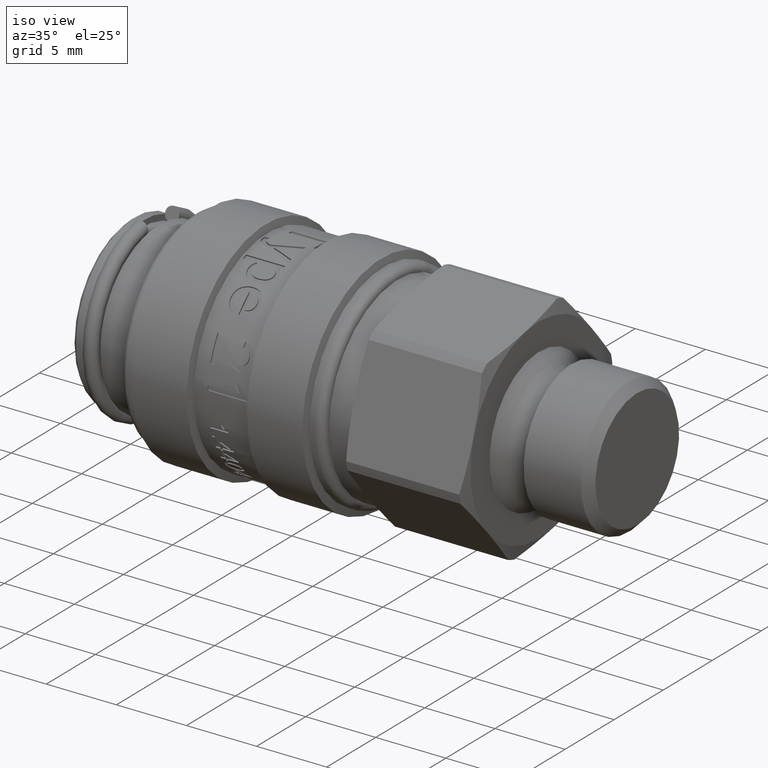
[diagram: clean part render]
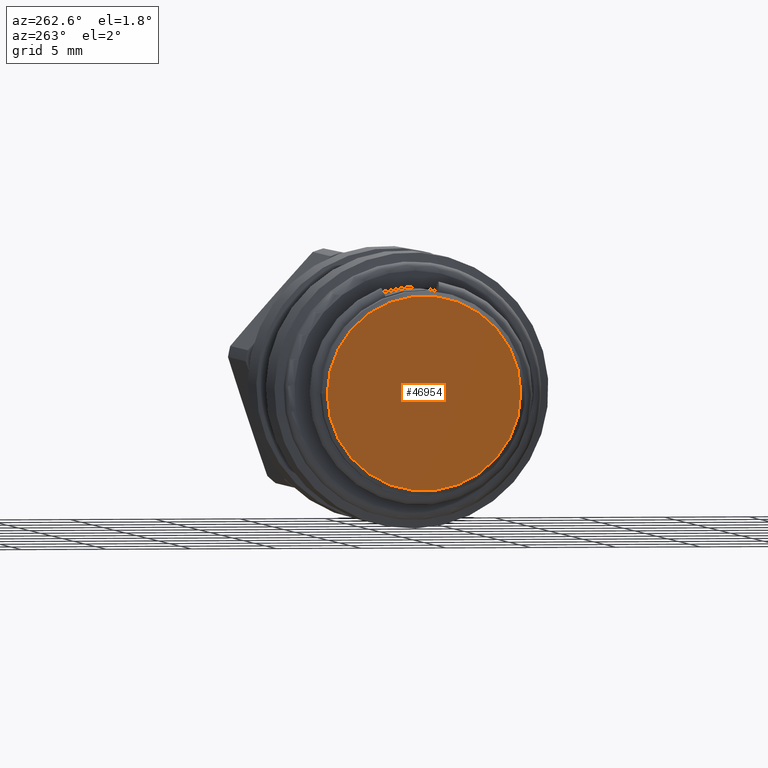
[diagram: tour spotlight — one face highlighted and labeled with its STEP entity id]
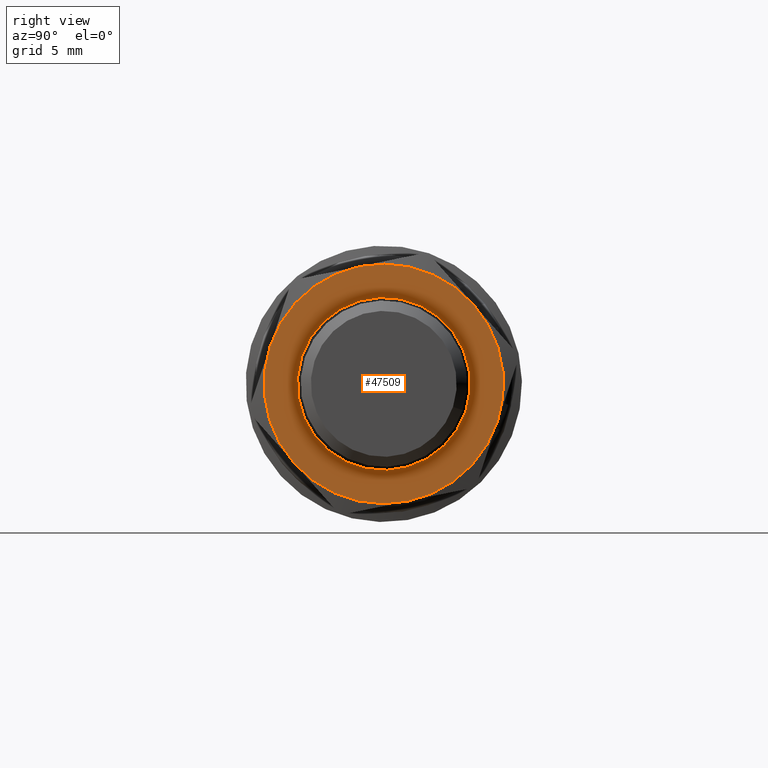
[diagram: tour spotlight — one face highlighted and labeled with its STEP entity id]
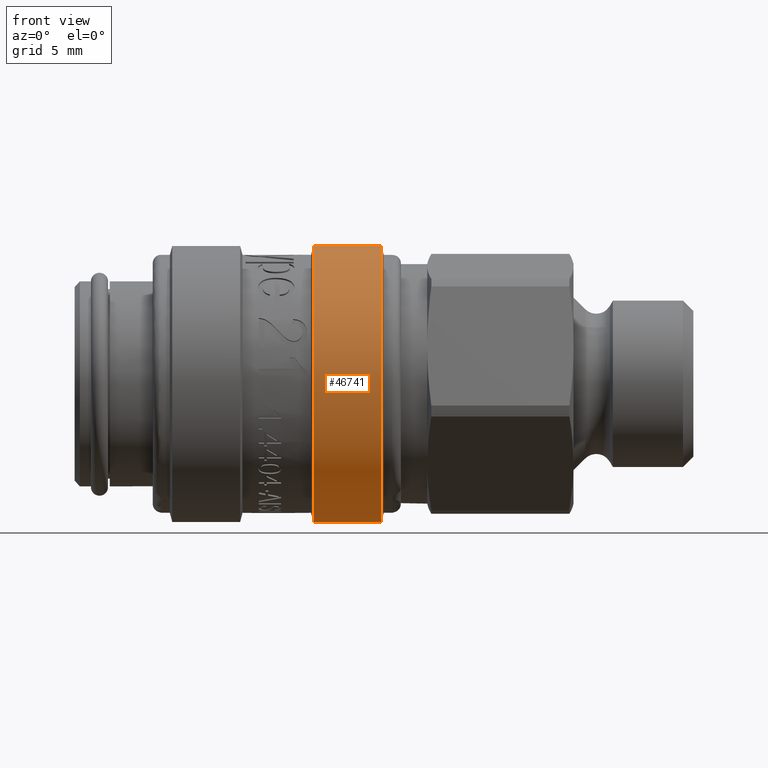
[diagram: tour spotlight — one face highlighted and labeled with its STEP entity id]
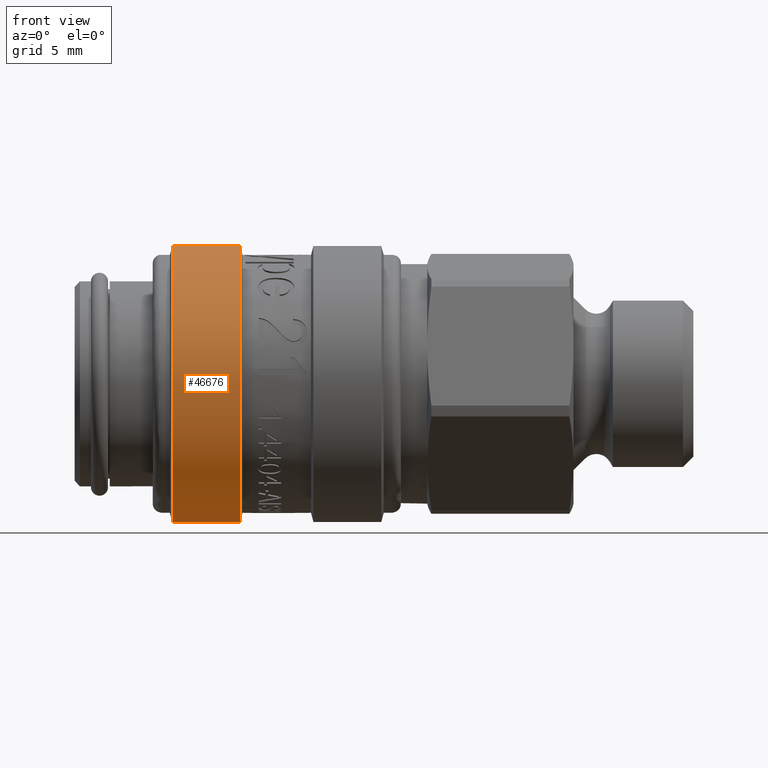
[diagram: tour spotlight — one face highlighted and labeled with its STEP entity id]
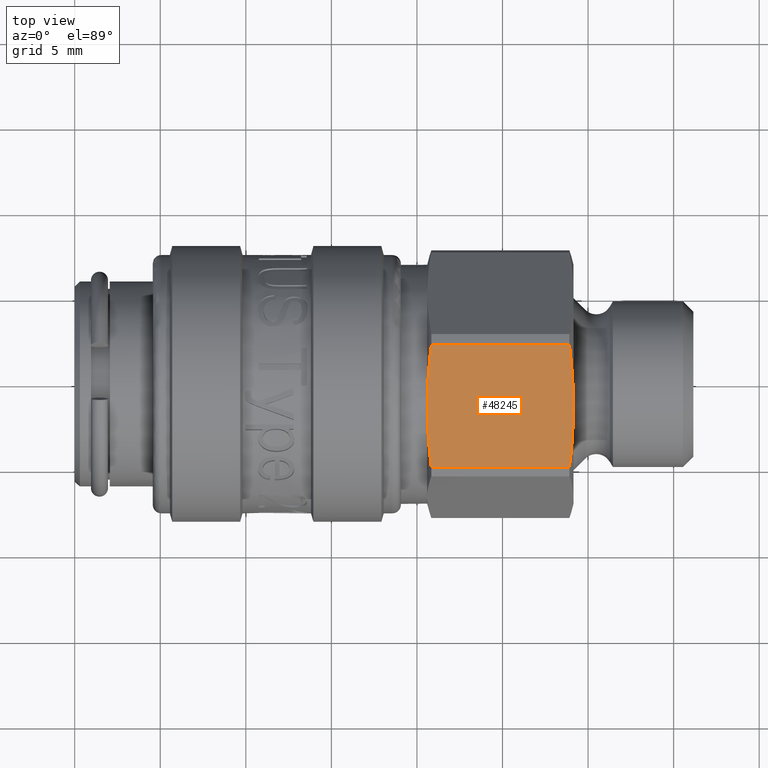
[diagram: tour spotlight — one face highlighted and labeled with its STEP entity id]
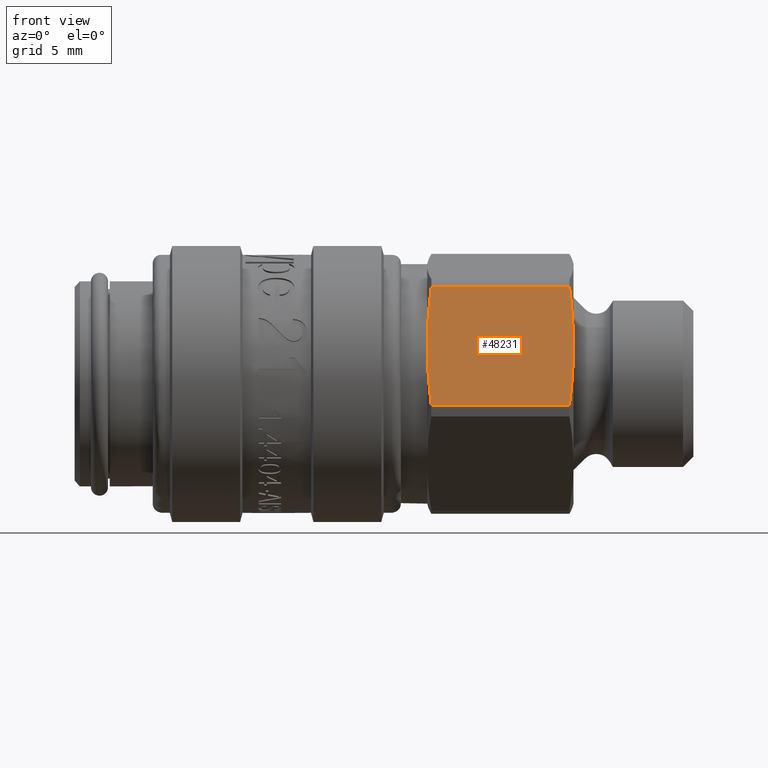
[diagram: tour spotlight — one face highlighted and labeled with its STEP entity id]
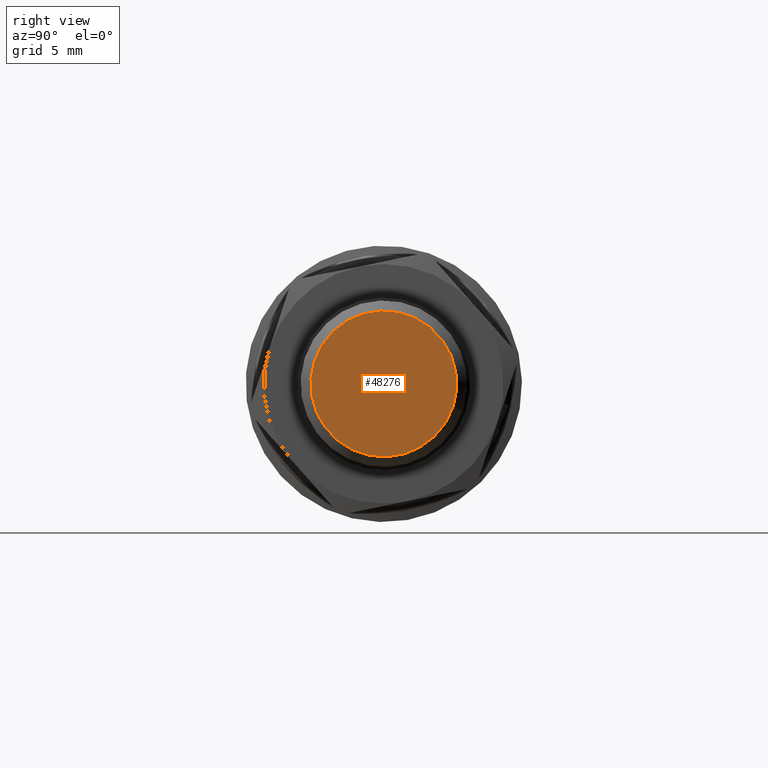
[diagram: tour spotlight — one face highlighted and labeled with its STEP entity id]
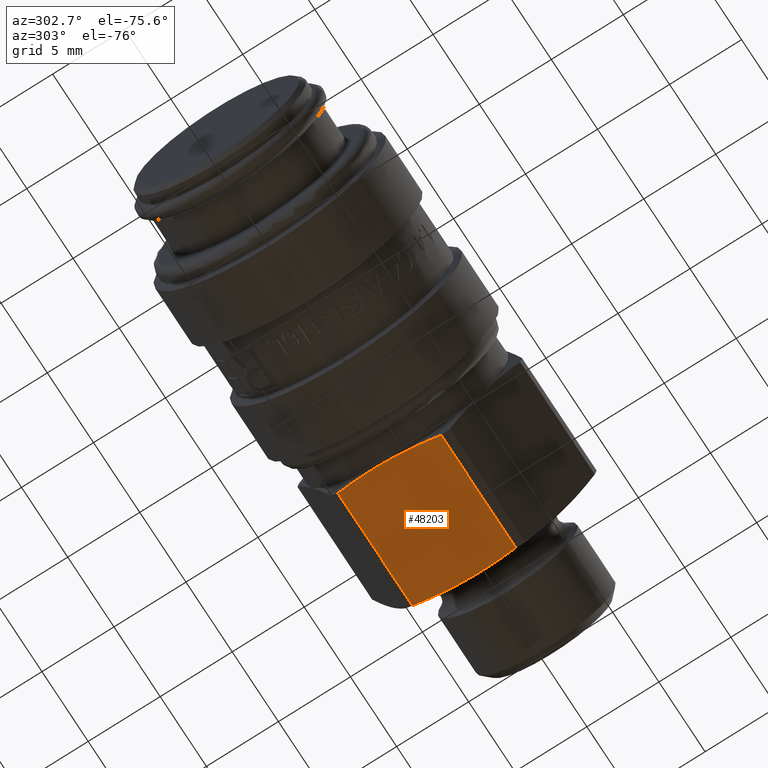
[diagram: tour spotlight — one face highlighted and labeled with its STEP entity id]
A machine part: a face-by-face anatomy tour. The part has 401 B-rep faces; the first image is the clean iso view, then the 8 largest visible faces are spotlighted one at a time (largest first), each with its STEP entity span.

Face 1 — auxiliary view, entity #46954. In plain terms, the highlighted planar face has unit normal (-1, 0, 0).
Definition (entity closure, byte-faithful):
#46934=CARTESIAN_POINT('',(2.775558E-016,5.700000000000001,0.0));
#46935=VERTEX_POINT('',#46934);
#46936=CARTESIAN_POINT('',(0.0,0.0,0.0));
#46937=DIRECTION('',(1.0,0.0,0.0));
#46938=DIRECTION('',(0.0,1.0,0.0));
#46939=AXIS2_PLACEMENT_3D('',#46936,#46937,#46938);
#46940=CIRCLE('',#46939,5.700000000000001);
#46941=EDGE_CURVE('',#46935,#46935,#46940,.T.);
#46946=CARTESIAN_POINT('',(2.605129E-016,5.350000000000001,0.0));
#46947=DIRECTION('',(-1.0,0.0,0.0));
#46948=DIRECTION('',(0.0,0.0,1.0));
#46949=AXIS2_PLACEMENT_3D('',#46946,#46947,#46948);
#46950=PLANE('',#46949);
#46951=ORIENTED_EDGE('',*,*,#46941,.F.);
#46952=EDGE_LOOP('',(#46951));
#46953=FACE_OUTER_BOUND('',#46952,.T.);
#46954=ADVANCED_FACE('',(#46953),#46950,.T.);

Face 2 — right view, entity #47509. In plain terms, the highlighted planar face has unit normal (1, 0, 0).
Definition (entity closure, byte-faithful):
#47406=CARTESIAN_POINT('',(29.149999999999995,5.235991409080829,4.645900769929528));
#47407=VERTEX_POINT('',#47406);
#47422=CARTESIAN_POINT('',(29.149999999999995,-1.405472385680237,6.857451959225839));
#47423=VERTEX_POINT('',#47422);
#47437=CARTESIAN_POINT('',(29.149999999999995,0.0,0.0));
#47438=DIRECTION('',(-1.0,0.0,0.0));
#47439=DIRECTION('',(0.0,0.948780542108724,-0.315935884185188));
#47440=AXIS2_PLACEMENT_3D('',#47437,#47438,#47439);
#47441=CIRCLE('',#47440,7.000000000000001);
#47442=EDGE_CURVE('',#47423,#47407,#47441,.T.);
#47447=CARTESIAN_POINT('',(29.149999999999995,5.71640276620506,-1.90351370221576));
#47448=DIRECTION('',(1.0,0.0,0.0));
#47449=DIRECTION('',(0.0,-0.315935884185188,-0.948780542108724));
#47450=AXIS2_PLACEMENT_3D('',#47447,#47448,#47449);
#47451=PLANE('',#47450);
#47452=CARTESIAN_POINT('',(29.149999999999995,6.641463794761066,-2.211551189296318));
#47453=VERTEX_POINT('',#47452);
#47454=CARTESIAN_POINT('',(29.149999999999995,1.405472385680234,-6.857451959225841));
#47455=VERTEX_POINT('',#47454);
#47456=CARTESIAN_POINT('',(29.149999999999995,0.0,0.0));
#47457=DIRECTION('',(-1.0,0.0,0.0));
#47458=DIRECTION('',(0.0,0.948780542108724,-0.315935884185188));
#47459=AXIS2_PLACEMENT_3D('',#47456,#47457,#47458);
#47460=CIRCLE('',#47459,7.000000000000001);
#47461=EDGE_CURVE('',#47453,#47455,#47460,.T.);
#47462=ORIENTED_EDGE('',*,*,#47461,.F.);
#47463=CARTESIAN_POINT('',(29.149999999999995,0.0,0.0));
#47464=DIRECTION('',(-1.0,0.0,0.0));
#47465=DIRECTION('',(0.0,0.948780542108724,-0.315935884185188));
#47466=AXIS2_PLACEMENT_3D('',#47463,#47464,#47465);
#47467=CIRCLE('',#47466,7.000000000000001);
#47468=EDGE_CURVE('',#47407,#47453,#47467,.T.);
#47469=ORIENTED_EDGE('',*,*,#47468,.F.);
#47470=ORIENTED_EDGE('',*,*,#47442,.F.);
#47471=CARTESIAN_POINT('',(29.149999999999995,-6.641463794761067,2.211551189296317));
#47472=VERTEX_POINT('',#47471);
#47473=CARTESIAN_POINT('',(29.149999999999995,0.0,0.0));
#47474=DIRECTION('',(-1.0,0.0,0.0));
#47475=DIRECTION('',(0.0,0.948780542108724,-0.315935884185188));
#47476=AXIS2_PLACEMENT_3D('',#47473,#47474,#47475);
#47477=CIRCLE('',#47476,7.000000000000001);
#47478=EDGE_CURVE('',#47472,#47423,#47477,.T.);
#47479=ORIENTED_EDGE('',*,*,#47478,.F.);
#47480=CARTESIAN_POINT('',(29.149999999999995,-5.235991409080833,-4.645900769929525));
#47481=VERTEX_POINT('',#47480);
#47482=CARTESIAN_POINT('',(29.149999999999995,0.0,0.0));
#47483=DIRECTION('',(-1.0,0.0,0.0));
#47484=DIRECTION('',(0.0,0.948780542108724,-0.315935884185188));
#47485=AXIS2_PLACEMENT_3D('',#47482,#47483,#47484);
#47486=CIRCLE('',#47485,7.000000000000001);
#47487=EDGE_CURVE('',#47481,#47472,#47486,.T.);
#47488=ORIENTED_EDGE('',*,*,#47487,.F.);
#47489=CARTESIAN_POINT('',(29.149999999999995,0.0,0.0));
#47490=DIRECTION('',(-1.0,0.0,0.0));
#47491=DIRECTION('',(0.0,0.948780542108724,-0.315935884185188));
#47492=AXIS2_PLACEMENT_3D('',#47489,#47490,#47491);
#47493=CIRCLE('',#47492,7.000000000000001);
#47494=EDGE_CURVE('',#47455,#47481,#47493,.T.);
#47495=ORIENTED_EDGE('',*,*,#47494,.F.);
#47496=EDGE_LOOP('',(#47462,#47469,#47470,#47479,#47488,#47495));
#47497=FACE_OUTER_BOUND('',#47496,.T.);
#47498=CARTESIAN_POINT('',(29.149999999999995,4.791341737649054,-1.595476215135201));
#47499=VERTEX_POINT('',#47498);
#47500=CARTESIAN_POINT('',(29.149999999999995,0.0,0.0));
#47501=DIRECTION('',(-1.0,0.0,0.0));
#47502=DIRECTION('',(0.0,0.948780542108724,-0.315935884185188));
#47503=AXIS2_PLACEMENT_3D('',#47500,#47501,#47502);
#47504=CIRCLE('',#47503,5.05);
#47505=EDGE_CURVE('',#47499,#47499,#47504,.T.);
#47506=ORIENTED_EDGE('',*,*,#47505,.T.);
#47507=EDGE_LOOP('',(#47506));
#47508=FACE_BOUND('',#47507,.T.);
#47509=ADVANCED_FACE('',(#47497,#47508),#47451,.T.);

Face 3 — front view, entity #46741. In plain terms, the highlighted cylindrical surface (bore or boss wall) has radius 8.075 mm, axis along (1, 0, 0).
Definition (entity closure, byte-faithful):
#46707=CARTESIAN_POINT('',(13.95067332602634,6.722767614117088,-4.473256152578166));
#46708=VERTEX_POINT('',#46707);
#46709=CARTESIAN_POINT('',(13.95067332602634,0.0,0.0));
#46710=DIRECTION('',(1.0,0.0,0.0));
#46711=DIRECTION('',(0.0,0.832540881005212,-0.553963610226398));
#46712=AXIS2_PLACEMENT_3D('',#46709,#46710,#46711);
#46713=CIRCLE('',#46712,8.074999999999998);
#46714=EDGE_CURVE('',#46708,#46708,#46713,.T.);
#46722=CARTESIAN_POINT('',(15.935000000000002,0.0,0.0));
#46723=DIRECTION('',(1.0,0.0,0.0));
#46724=DIRECTION('',(0.0,0.832540881005212,-0.553963610226398));
#46725=AXIS2_PLACEMENT_3D('',#46722,#46723,#46724);
#46726=CYLINDRICAL_SURFACE('',#46725,8.074999999999999);
#46727=CARTESIAN_POINT('',(17.919326673973664,6.722767614117089,-4.473256152578167));
#46728=VERTEX_POINT('',#46727);
#46729=CARTESIAN_POINT('',(17.919326673973664,0.0,0.0));
#46730=DIRECTION('',(1.0,0.0,0.0));
#46731=DIRECTION('',(0.0,0.832540881005212,-0.553963610226399));
#46732=AXIS2_PLACEMENT_3D('',#46729,#46730,#46731);
#46733=CIRCLE('',#46732,8.074999999999999);
#46734=EDGE_CURVE('',#46728,#46728,#46733,.T.);
#46735=ORIENTED_EDGE('',*,*,#46734,.F.);
#46736=EDGE_LOOP('',(#46735));
#46737=FACE_OUTER_BOUND('',#46736,.T.);
#46738=ORIENTED_EDGE('',*,*,#46714,.T.);
#46739=EDGE_LOOP('',(#46738));
#46740=FACE_BOUND('',#46739,.T.);
#46741=ADVANCED_FACE('',(#46737,#46740),#46726,.T.);

Face 4 — front view, entity #46676. In plain terms, the highlighted cylindrical surface (bore or boss wall) has radius 8.075 mm, axis along (1, 0, 0).
Definition (entity closure, byte-faithful):
#46642=CARTESIAN_POINT('',(5.70067332602634,6.722767614117089,-4.473256152578167));
#46643=VERTEX_POINT('',#46642);
#46644=CARTESIAN_POINT('',(5.70067332602634,0.0,0.0));
#46645=DIRECTION('',(1.0,0.0,0.0));
#46646=DIRECTION('',(0.0,0.832540881005212,-0.553963610226399));
#46647=AXIS2_PLACEMENT_3D('',#46644,#46645,#46646);
#46648=CIRCLE('',#46647,8.074999999999999);
#46649=EDGE_CURVE('',#46643,#46643,#46648,.T.);
#46657=CARTESIAN_POINT('',(7.685,0.0,0.0));
#46658=DIRECTION('',(1.0,0.0,0.0));
#46659=DIRECTION('',(0.0,0.832540881005212,-0.553963610226398));
#46660=AXIS2_PLACEMENT_3D('',#46657,#46658,#46659);
#46661=CYLINDRICAL_SURFACE('',#46660,8.074999999999999);
#46662=CARTESIAN_POINT('',(9.669326673973661,6.722767614117088,-4.473256152578166));
#46663=VERTEX_POINT('',#46662);
#46664=CARTESIAN_POINT('',(9.669326673973661,0.0,0.0));
#46665=DIRECTION('',(1.0,0.0,0.0));
#46666=DIRECTION('',(0.0,0.832540881005212,-0.553963610226398));
#46667=AXIS2_PLACEMENT_3D('',#46664,#46665,#46666);
#46668=CIRCLE('',#46667,8.074999999999998);
#46669=EDGE_CURVE('',#46663,#46663,#46668,.T.);
#46670=ORIENTED_EDGE('',*,*,#46669,.F.);
#46671=EDGE_LOOP('',(#46670));
#46672=FACE_OUTER_BOUND('',#46671,.T.);
#46673=ORIENTED_EDGE('',*,*,#46649,.T.);
#46674=EDGE_LOOP('',(#46673));
#46675=FACE_BOUND('',#46674,.T.);
#46676=ADVANCED_FACE('',(#46672,#46675),#46661,.T.);

Face 5 — top view, entity #48245. In plain terms, the highlighted planar face has unit normal (0, 0.2008, -0.9796).
Definition (entity closure, byte-faithful):
#47331=CARTESIAN_POINT('',(20.599999999999994,-1.405472385680237,6.857451959225839));
#47332=VERTEX_POINT('',#47331);
#47374=CARTESIAN_POINT('',(20.841154273188014,2.181921988141717,7.592708109605145));
#47375=VERTEX_POINT('',#47374);
#47383=CARTESIAN_POINT('',(28.908845726811986,2.181921988141717,7.592708109605145));
#47384=VERTEX_POINT('',#47383);
#47385=CARTESIAN_POINT('',(20.841154273188017,2.181921988141717,7.592708109605145));
#47386=DIRECTION('',(1.0,0.0,0.0));
#47387=VECTOR('',#47386,8.067691453623972);
#47388=LINE('',#47385,#47387);
#47389=EDGE_CURVE('',#47375,#47384,#47388,.T.);
#47422=CARTESIAN_POINT('',(29.149999999999995,-1.405472385680237,6.857451959225839));
#47423=VERTEX_POINT('',#47422);
#47424=CARTESIAN_POINT('',(28.908845726811986,2.181921988141715,7.592708109605143));
#47425=CARTESIAN_POINT('',(29.149999999999995,0.279880675846851,7.202874311753029));
#47426=CARTESIAN_POINT('',(29.149999999999995,-1.405472385680237,6.857451959225839));
#47434=(BOUNDED_CURVE()B_SPLINE_CURVE(2,(#47424,#47425,#47426),.UNSPECIFIED.,.F.,.U.)B_SPLINE_CURVE_WITH_KNOTS((3,3),(0.0,0.367169590188575),.UNSPECIFIED.)CURVE()GEOMETRIC_REPRESENTATION_ITEM()RATIONAL_B_SPLINE_CURVE((1.0,1.031642241421756,1.0))REPRESENTATION_ITEM(''));
#47435=EDGE_CURVE('',#47384,#47423,#47434,.T.);
#47655=CARTESIAN_POINT('',(28.908845726811986,-4.992866759502191,6.122195808846538));
#47656=VERTEX_POINT('',#47655);
#47657=CARTESIAN_POINT('',(29.149999999999995,-1.405472385680237,6.857451959225839));
#47658=CARTESIAN_POINT('',(29.149999999999995,-3.090825447207325,6.512029606698652));
#47659=CARTESIAN_POINT('',(28.908845726811986,-4.99286675950219,6.122195808846538));
#47667=(BOUNDED_CURVE()B_SPLINE_CURVE(2,(#47657,#47658,#47659),.UNSPECIFIED.,.F.,.U.)B_SPLINE_CURVE_WITH_KNOTS((3,3),(0.367169590188575,0.73433918037715),.UNSPECIFIED.)CURVE()GEOMETRIC_REPRESENTATION_ITEM()RATIONAL_B_SPLINE_CURVE((1.0,1.031642241421755,1.0))REPRESENTATION_ITEM(''));
#47668=EDGE_CURVE('',#47423,#47656,#47667,.T.);
#47857=CARTESIAN_POINT('',(20.841154273188014,-4.992866759502191,6.122195808846538));
#47858=VERTEX_POINT('',#47857);
#47859=CARTESIAN_POINT('',(28.90884572681199,-4.992866759502191,6.122195808846538));
#47860=DIRECTION('',(-1.0,0.0,0.0));
#47861=VECTOR('',#47860,8.067691453623972);
#47862=LINE('',#47859,#47861);
#47863=EDGE_CURVE('',#47656,#47858,#47862,.T.);
#48017=CARTESIAN_POINT('',(20.599999999999994,-1.405472385680238,6.857451959225841));
#48018=CARTESIAN_POINT('',(20.600000000000001,0.279880675846858,7.20287431175303));
#48019=CARTESIAN_POINT('',(20.841154273188014,2.181921988141736,7.592708109605147));
#48027=(BOUNDED_CURVE()B_SPLINE_CURVE(2,(#48017,#48018,#48019),.UNSPECIFIED.,.F.,.U.)B_SPLINE_CURVE_WITH_KNOTS((3,3),(0.367169590188577,0.734339180377154),.UNSPECIFIED.)CURVE()GEOMETRIC_REPRESENTATION_ITEM()RATIONAL_B_SPLINE_CURVE((1.0,1.031642241421724,1.0))REPRESENTATION_ITEM(''));
#48028=EDGE_CURVE('',#47332,#47375,#48027,.T.);
#48063=CARTESIAN_POINT('',(20.841154273188014,-4.992866759502209,6.122195808846533));
#48064=CARTESIAN_POINT('',(20.599999999999994,-3.090825447207333,6.512029606698651));
#48065=CARTESIAN_POINT('',(20.599999999999994,-1.405472385680238,6.857451959225841));
#48073=(BOUNDED_CURVE()B_SPLINE_CURVE(2,(#48063,#48064,#48065),.UNSPECIFIED.,.F.,.U.)B_SPLINE_CURVE_WITH_KNOTS((3,3),(0.0,0.367169590188577),.UNSPECIFIED.)CURVE()GEOMETRIC_REPRESENTATION_ITEM()RATIONAL_B_SPLINE_CURVE((1.0,1.031642241421728,1.0))REPRESENTATION_ITEM(''));
#48074=EDGE_CURVE('',#47858,#47332,#48073,.T.);
#48232=CARTESIAN_POINT('',(19.146334310459181,-1.405472385680237,6.857451959225839));
#48233=DIRECTION('',(0.0,0.200781769382891,-0.97963599417512));
#48234=DIRECTION('',(0.0,-0.97963599417512,-0.200781769382891));
#48235=AXIS2_PLACEMENT_3D('',#48232,#48233,#48234);
#48236=PLANE('',#48235);
#48237=ORIENTED_EDGE('',*,*,#48028,.F.);
#48238=ORIENTED_EDGE('',*,*,#48074,.F.);
#48239=ORIENTED_EDGE('',*,*,#47863,.F.);
#48240=ORIENTED_EDGE('',*,*,#47668,.F.);
#48241=ORIENTED_EDGE('',*,*,#47435,.F.);
#48242=ORIENTED_EDGE('',*,*,#47389,.F.);
#48243=EDGE_LOOP('',(#48237,#48238,#48239,#48240,#48241,#48242));
#48244=FACE_OUTER_BOUND('',#48243,.T.);
#48245=ADVANCED_FACE('',(#48244),#48236,.F.);

Face 6 — front view, entity #48231. In plain terms, the highlighted planar face has unit normal (0, 0.9488, -0.3159).
Definition (entity closure, byte-faithful):
#47322=CARTESIAN_POINT('',(20.599999999999994,-6.641463794761067,2.211551189296317));
#47323=VERTEX_POINT('',#47322);
#47471=CARTESIAN_POINT('',(29.149999999999995,-6.641463794761067,2.211551189296317));
#47472=VERTEX_POINT('',#47471);
#47670=CARTESIAN_POINT('',(28.908845726811986,-5.484517112367318,5.685953925609147));
#47671=VERTEX_POINT('',#47670);
#47679=CARTESIAN_POINT('',(28.908845726811986,-5.484517112367319,5.685953925609143));
#47680=CARTESIAN_POINT('',(29.149999999999995,-6.097931796321054,3.843820931188237));
#47681=CARTESIAN_POINT('',(29.149999999999995,-6.641463794761067,2.211551189296317));
#47689=(BOUNDED_CURVE()B_SPLINE_CURVE(2,(#47679,#47680,#47681),.UNSPECIFIED.,.F.,.U.)B_SPLINE_CURVE_WITH_KNOTS((3,3),(0.0,0.367169590188574),.UNSPECIFIED.)CURVE()GEOMETRIC_REPRESENTATION_ITEM()RATIONAL_B_SPLINE_CURVE((1.0,1.031642241421788,1.0))REPRESENTATION_ITEM(''));
#47690=EDGE_CURVE('',#47671,#47472,#47689,.T.);
#47701=CARTESIAN_POINT('',(28.908845726811986,-7.798410477154816,-1.262851547016513));
#47702=VERTEX_POINT('',#47701);
#47703=CARTESIAN_POINT('',(29.149999999999995,-6.641463794761067,2.211551189296317));
#47704=CARTESIAN_POINT('',(29.149999999999995,-7.184995793201079,0.579281447404397));
#47705=CARTESIAN_POINT('',(28.908845726811986,-7.798410477154816,-1.262851547016509));
#47713=(BOUNDED_CURVE()B_SPLINE_CURVE(2,(#47703,#47704,#47705),.UNSPECIFIED.,.F.,.U.)B_SPLINE_CURVE_WITH_KNOTS((3,3),(0.367169590188574,0.734339180377149),.UNSPECIFIED.)CURVE()GEOMETRIC_REPRESENTATION_ITEM()RATIONAL_B_SPLINE_CURVE((1.0,1.031642241421768,1.0))REPRESENTATION_ITEM(''));
#47714=EDGE_CURVE('',#47472,#47702,#47713,.T.);
#47865=CARTESIAN_POINT('',(20.841154273188014,-5.484517112367318,5.685953925609147));
#47866=VERTEX_POINT('',#47865);
#47874=CARTESIAN_POINT('',(20.841154273188017,-5.484517112367318,5.685953925609147));
#47875=DIRECTION('',(1.0,0.0,0.0));
#47876=VECTOR('',#47875,8.067691453623972);
#47877=LINE('',#47874,#47876);
#47878=EDGE_CURVE('',#47866,#47671,#47877,.T.);
#47889=CARTESIAN_POINT('',(20.841154273188014,-7.798410477154816,-1.262851547016513));
#47890=VERTEX_POINT('',#47889);
#47891=CARTESIAN_POINT('',(28.90884572681199,-7.798410477154816,-1.262851547016513));
#47892=DIRECTION('',(-1.0,0.0,0.0));
#47893=VECTOR('',#47892,8.067691453623972);
#47894=LINE('',#47891,#47893);
#47895=EDGE_CURVE('',#47702,#47890,#47894,.T.);
#48077=CARTESIAN_POINT('',(20.599999999999994,-6.641463794761067,2.211551189296317));
#48078=CARTESIAN_POINT('',(20.600000000000001,-6.097931796321049,3.843820931188255));
#48079=CARTESIAN_POINT('',(20.841154273188014,-5.484517112367312,5.685953925609164));
#48087=(BOUNDED_CURVE()B_SPLINE_CURVE(2,(#48077,#48078,#48079),.UNSPECIFIED.,.F.,.U.)B_SPLINE_CURVE_WITH_KNOTS((3,3),(0.367169590188577,0.734339180377154),.UNSPECIFIED.)CURVE()GEOMETRIC_REPRESENTATION_ITEM()RATIONAL_B_SPLINE_CURVE((1.0,1.031642241421729,1.0))REPRESENTATION_ITEM(''));
#48088=EDGE_CURVE('',#47323,#47866,#48087,.T.);
#48099=CARTESIAN_POINT('',(20.841154273188014,-7.798410477154824,-1.262851547016531));
#48100=CARTESIAN_POINT('',(20.599999999999994,-7.184995793201086,0.579281447404379));
#48101=CARTESIAN_POINT('',(20.599999999999994,-6.641463794761067,2.211551189296317));
#48109=(BOUNDED_CURVE()B_SPLINE_CURVE(2,(#48099,#48100,#48101),.UNSPECIFIED.,.F.,.U.)B_SPLINE_CURVE_WITH_KNOTS((3,3),(0.0,0.367169590188577),.UNSPECIFIED.)CURVE()GEOMETRIC_REPRESENTATION_ITEM()RATIONAL_B_SPLINE_CURVE((1.0,1.031642241421718,1.0))REPRESENTATION_ITEM(''));
#48110=EDGE_CURVE('',#47890,#47323,#48109,.T.);
#48218=CARTESIAN_POINT('',(19.146334310459181,-6.641463794761067,2.211551189296317));
#48219=DIRECTION('',(0.0,0.948780542108724,-0.315935884185188));
#48220=DIRECTION('',(0.0,-0.315935884185188,-0.948780542108724));
#48221=AXIS2_PLACEMENT_3D('',#48218,#48219,#48220);
#48222=PLANE('',#48221);
#48223=ORIENTED_EDGE('',*,*,#48088,.F.);
#48224=ORIENTED_EDGE('',*,*,#48110,.F.);
#48225=ORIENTED_EDGE('',*,*,#47895,.F.);
#48226=ORIENTED_EDGE('',*,*,#47714,.F.);
#48227=ORIENTED_EDGE('',*,*,#47690,.F.);
#48228=ORIENTED_EDGE('',*,*,#47878,.F.);
#48229=EDGE_LOOP('',(#48223,#48224,#48225,#48226,#48227,#48228));
#48230=FACE_OUTER_BOUND('',#48229,.T.);
#48231=ADVANCED_FACE('',(#48230),#48222,.F.);

Face 7 — right view, entity #48276. In plain terms, the highlighted planar face has unit normal (1, 0, 0).
Definition (entity closure, byte-faithful):
#48260=CARTESIAN_POINT('',(36.149999999999999,3.49340995604432,-1.163275925569863));
#48261=DIRECTION('',(1.0,0.0,0.0));
#48262=DIRECTION('',(0.0,-0.315935884185188,-0.948780542108724));
#48263=AXIS2_PLACEMENT_3D('',#48260,#48261,#48262);
#48264=PLANE('',#48263);
#48265=CARTESIAN_POINT('',(36.149999999999999,4.045600231551597,-1.347150610165643));
#48266=VERTEX_POINT('',#48265);
#48267=CARTESIAN_POINT('',(36.149999999999999,0.0,0.0));
#48268=DIRECTION('',(-1.0,0.0,0.0));
#48269=DIRECTION('',(0.0,-0.948780542108723,0.315935884185188));
#48270=AXIS2_PLACEMENT_3D('',#48267,#48268,#48269);
#48271=CIRCLE('',#48270,4.263999999999999);
#48272=EDGE_CURVE('',#48266,#48266,#48271,.T.);
#48273=ORIENTED_EDGE('',*,*,#48272,.F.);
#48274=EDGE_LOOP('',(#48273));
#48275=FACE_OUTER_BOUND('',#48274,.T.);
#48276=ADVANCED_FACE('',(#48275),#48264,.T.);

Face 8 — auxiliary view, entity #48203. In plain terms, the highlighted planar face has unit normal (0, -0.2008, 0.9796).
Definition (entity closure, byte-faithful):
#47304=CARTESIAN_POINT('',(20.599999999999994,1.405472385680234,-6.857451959225841));
#47305=VERTEX_POINT('',#47304);
#47454=CARTESIAN_POINT('',(29.149999999999995,1.405472385680234,-6.857451959225841));
#47455=VERTEX_POINT('',#47454);
#47762=CARTESIAN_POINT('',(28.908845726811986,-2.18192198814172,-7.592708109605142));
#47763=VERTEX_POINT('',#47762);
#47771=CARTESIAN_POINT('',(28.908845726811986,-2.181921988141715,-7.592708109605141));
#47772=CARTESIAN_POINT('',(29.149999999999995,-0.279880675846843,-7.202874311753027));
#47773=CARTESIAN_POINT('',(29.149999999999995,1.405472385680233,-6.857451959225839));
#47781=(BOUNDED_CURVE()B_SPLINE_CURVE(2,(#47771,#47772,#47773),.UNSPECIFIED.,.F.,.U.)B_SPLINE_CURVE_WITH_KNOTS((3,3),(0.0,0.367169590188575),.UNSPECIFIED.)CURVE()GEOMETRIC_REPRESENTATION_ITEM()RATIONAL_B_SPLINE_CURVE((1.0,1.031642241421768,1.0))REPRESENTATION_ITEM(''));
#47782=EDGE_CURVE('',#47763,#47455,#47781,.T.);
#47793=CARTESIAN_POINT('',(28.908845726811986,4.992866759502189,-6.122195808846539));
#47794=VERTEX_POINT('',#47793);
#47795=CARTESIAN_POINT('',(29.149999999999995,1.405472385680233,-6.857451959225839));
#47796=CARTESIAN_POINT('',(29.149999999999995,3.090825447207312,-6.512029606698654));
#47797=CARTESIAN_POINT('',(28.908845726811986,4.992866759502185,-6.12219580884654));
#47805=(BOUNDED_CURVE()B_SPLINE_CURVE(2,(#47795,#47796,#47797),.UNSPECIFIED.,.F.,.U.)B_SPLINE_CURVE_WITH_KNOTS((3,3),(0.367169590188575,0.734339180377149),.UNSPECIFIED.)CURVE()GEOMETRIC_REPRESENTATION_ITEM()RATIONAL_B_SPLINE_CURVE((1.0,1.031642241421772,1.0))REPRESENTATION_ITEM(''));
#47806=EDGE_CURVE('',#47455,#47794,#47805,.T.);
#47929=CARTESIAN_POINT('',(20.841154273188014,-2.18192198814172,-7.592708109605142));
#47930=VERTEX_POINT('',#47929);
#47938=CARTESIAN_POINT('',(20.841154273188017,-2.18192198814172,-7.592708109605142));
#47939=DIRECTION('',(1.0,0.0,0.0));
#47940=VECTOR('',#47939,8.067691453623972);
#47941=LINE('',#47938,#47940);
#47942=EDGE_CURVE('',#47930,#47763,#47941,.T.);
#47953=CARTESIAN_POINT('',(20.841154273188014,4.992866759502189,-6.122195808846539));
#47954=VERTEX_POINT('',#47953);
#47955=CARTESIAN_POINT('',(28.90884572681199,4.992866759502189,-6.122195808846539));
#47956=DIRECTION('',(-1.0,0.0,0.0));
#47957=VECTOR('',#47956,8.067691453623972);
#47958=LINE('',#47955,#47957);
#47959=EDGE_CURVE('',#47794,#47954,#47958,.T.);
#48149=CARTESIAN_POINT('',(20.599999999999994,1.405472385680234,-6.857451959225841));
#48150=CARTESIAN_POINT('',(20.599999999999994,-0.279880675846881,-7.202874311753035));
#48151=CARTESIAN_POINT('',(20.841154273188014,-2.181921988141738,-7.592708109605146));
#48159=(BOUNDED_CURVE()B_SPLINE_CURVE(2,(#48149,#48150,#48151),.UNSPECIFIED.,.F.,.U.)B_SPLINE_CURVE_WITH_KNOTS((3,3),(0.367169590188577,0.734339180377154),.UNSPECIFIED.)CURVE()GEOMETRIC_REPRESENTATION_ITEM()RATIONAL_B_SPLINE_CURVE((1.0,1.031642241421713,1.0))REPRESENTATION_ITEM(''));
#48160=EDGE_CURVE('',#47305,#47930,#48159,.T.);
#48171=CARTESIAN_POINT('',(20.841154273188014,4.992866759502207,-6.122195808846536));
#48172=CARTESIAN_POINT('',(20.599999999999994,3.090825447207349,-6.512029606698647));
#48173=CARTESIAN_POINT('',(20.599999999999994,1.405472385680234,-6.857451959225841));
#48181=(BOUNDED_CURVE()B_SPLINE_CURVE(2,(#48171,#48172,#48173),.UNSPECIFIED.,.F.,.U.)B_SPLINE_CURVE_WITH_KNOTS((3,3),(0.0,0.367169590188577),.UNSPECIFIED.)CURVE()GEOMETRIC_REPRESENTATION_ITEM()RATIONAL_B_SPLINE_CURVE((1.0,1.031642241421707,1.0))REPRESENTATION_ITEM(''));
#48182=EDGE_CURVE('',#47954,#47305,#48181,.T.);
#48190=CARTESIAN_POINT('',(19.146334310459181,1.405472385680234,-6.857451959225841));
#48191=DIRECTION('',(0.0,-0.200781769382891,0.97963599417512));
#48192=DIRECTION('',(0.0,0.97963599417512,0.200781769382891));
#48193=AXIS2_PLACEMENT_3D('',#48190,#48191,#48192);
#48194=PLANE('',#48193);
#48195=ORIENTED_EDGE('',*,*,#48160,.F.);
#48196=ORIENTED_EDGE('',*,*,#48182,.F.);
#48197=ORIENTED_EDGE('',*,*,#47959,.F.);
#48198=ORIENTED_EDGE('',*,*,#47806,.F.);
#48199=ORIENTED_EDGE('',*,*,#47782,.F.);
#48200=ORIENTED_EDGE('',*,*,#47942,.F.);
#48201=EDGE_LOOP('',(#48195,#48196,#48197,#48198,#48199,#48200));
#48202=FACE_OUTER_BOUND('',#48201,.T.);
#48203=ADVANCED_FACE('',(#48202),#48194,.F.);